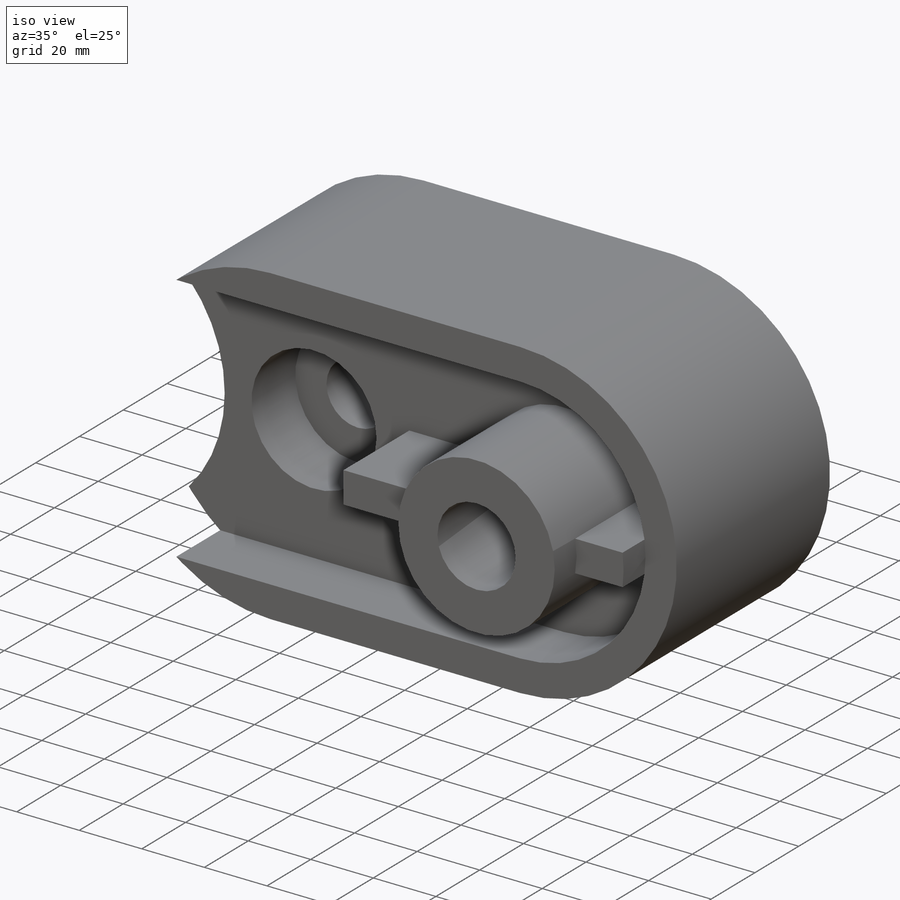
[diagram: iso view]
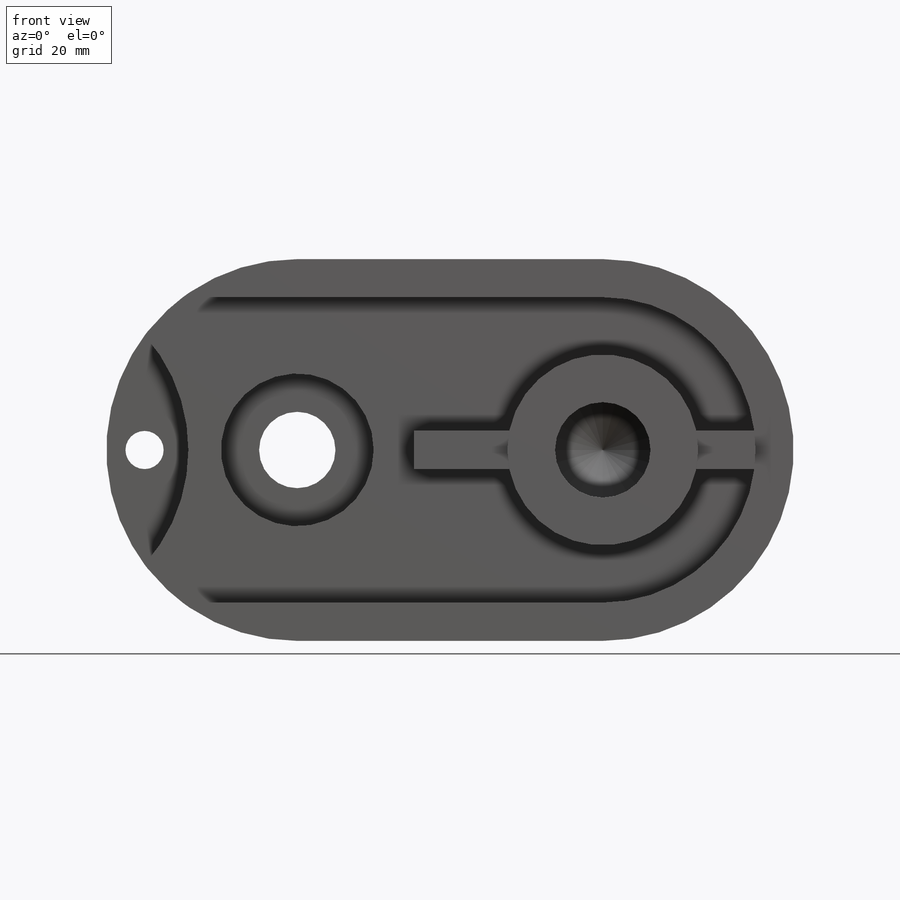
[diagram: front view]
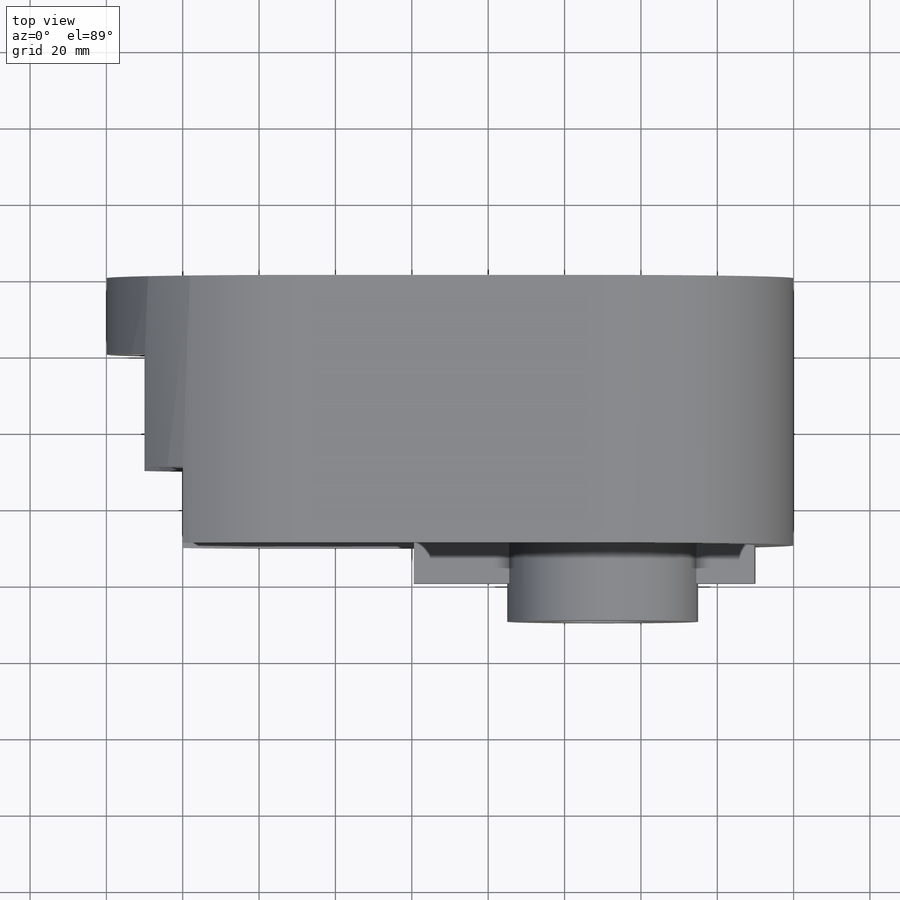
[diagram: top view]
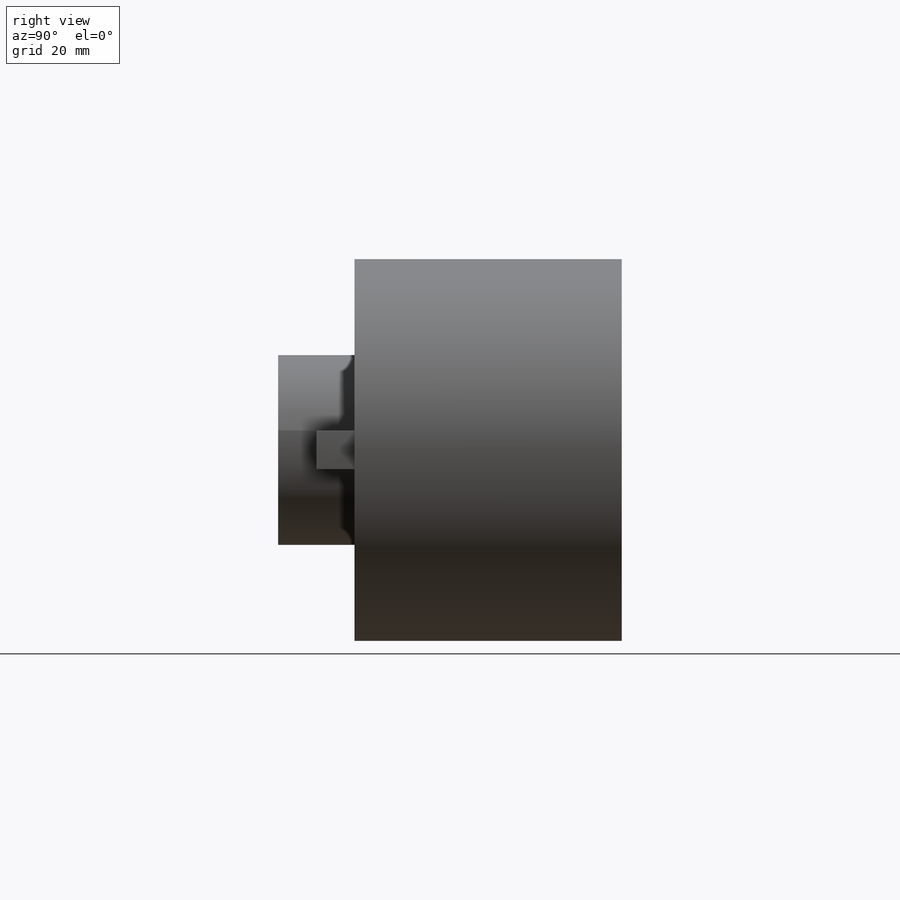
[diagram: right view]
SOLIDWORKS PART (.sldprt)
format: sldprt  version: not decoded by parser v0  size: 404,992 bytes
history: native  units: mm
features: sketch x16, cut_extrude x7, extrude x6, material x1, hole x1 (+13 scaffold rows collapsed)
feature tree (44):
  scaffold x13  (default folders/planes/origin — collapsed)
  material  "Material <not specified>"
  sketch  "Sketch1"  dims[D1=100.0mm D2=180.0mm]
  extrude  "Boss-Extrude2"  Depth=70mm
  sketch  "Sketch2"  dims[D9=50.0mm D1=50.0mm D2=50.0mm D3=50.0mm D4=50.0mm D5=50.0mm D6=50.0mm D7=50.0mm D8=50.0mm]
  cut_extrude  "Cut-Extrude1"  Depth=70mm
  sketch  "Sketch3"  dims[D1=10.0mm D2=50.0mm D3=10.0mm]
  cut_extrude  "Cut-Extrude2"  Depth=70mm
  sketch  "Sketch4"  dims[c1.D1=~51.912057mm c1.D5=45.0mm c2.D1=40.0mm c2.D2=40.0mm c2.D3=20.0mm c2.D4=20.0mm]
  cut_extrude  "Cut-Extrude3"  Depth=50mm
  sketch  "Sketch5"  dims[D1=20.0mm]
  cut_extrude  "Cut-Extrude4"  Depth=106mm
  sketch  "Sketch6"  dims[D1=30.0mm]
  cut_extrude  "Cut-Extrude5"  Depth=40mm
  sketch  "Sketch7"
  sketch  "Sketch8"  dims[D1=30.0mm D2=25.0mm]
  extrude  "Boss-Extrude3"  Depth=40mm
  sketch  "Sketch10"  dims[D1=25.0mm]
  extrude  "Boss-Extrude4"  Depth=65mm
  hole  "Ø25.0mm Dowel Hole2"  Diameter=25mm Depth=20mm
  sketch  "3DSketch2"
  sketch  "Sketch11"  dims[hole-wizard template sketch: 46 standard entries collapsed; hole parameters kept: c15.Hole Dia.=25.0mm c15.Hole Depth=20.0mm c15.D3=~14.816244mm c15.Drill Angle=118.0deg]
  sketch  "Sketch12"  dims[D3=40.0mm D1=10.0mm D2=10.0mm D4=110.0mm D5=20.0mm]
  cut_extrude  "Cut-Extrude6"  Depth=20mm
  sketch  "Sketch13"  dims[D1=25.0mm D2=50.0mm]
  extrude  "Boss-Extrude5"  Depth=40mm
  sketch  "Sketch14"  dims[D1=20.0mm D2=40.0mm]
  cut_extrude  "Cut-Extrude7"  Depth=20mm
  sketch  "Sketch15"  dims[D1=10.0mm D2=10.0mm D3=45.0mm D4=45.0mm D5=25.0mm]
  extrude  "Boss-Extrude10"  Depth=30mm
  sketch  "Sketch16"  dims[D1=45.0mm D2=10.0mm]
  extrude  "Boss-Extrude13"  Depth=30mm
decode coverage: 28 of 30 modeling features carry decoded parameters
note: ~ marks probable driven/reference dimensions
note: suppression state not decoded; provenance and decode notes live in map.json
